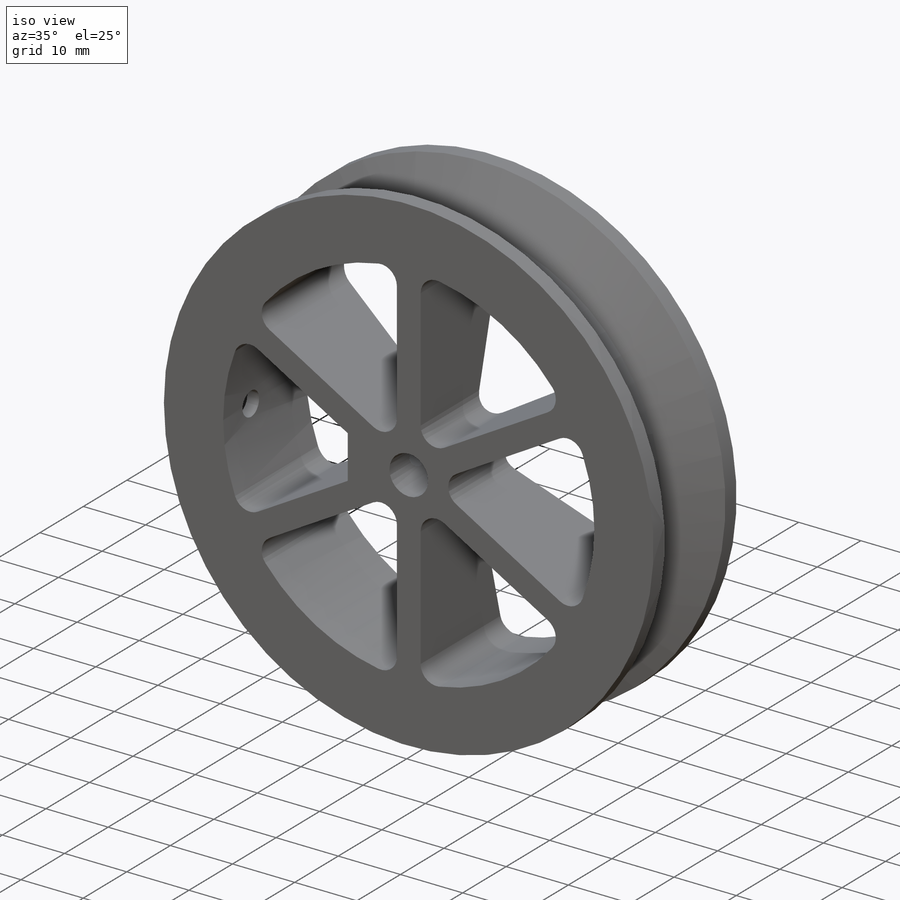
[diagram: iso view]
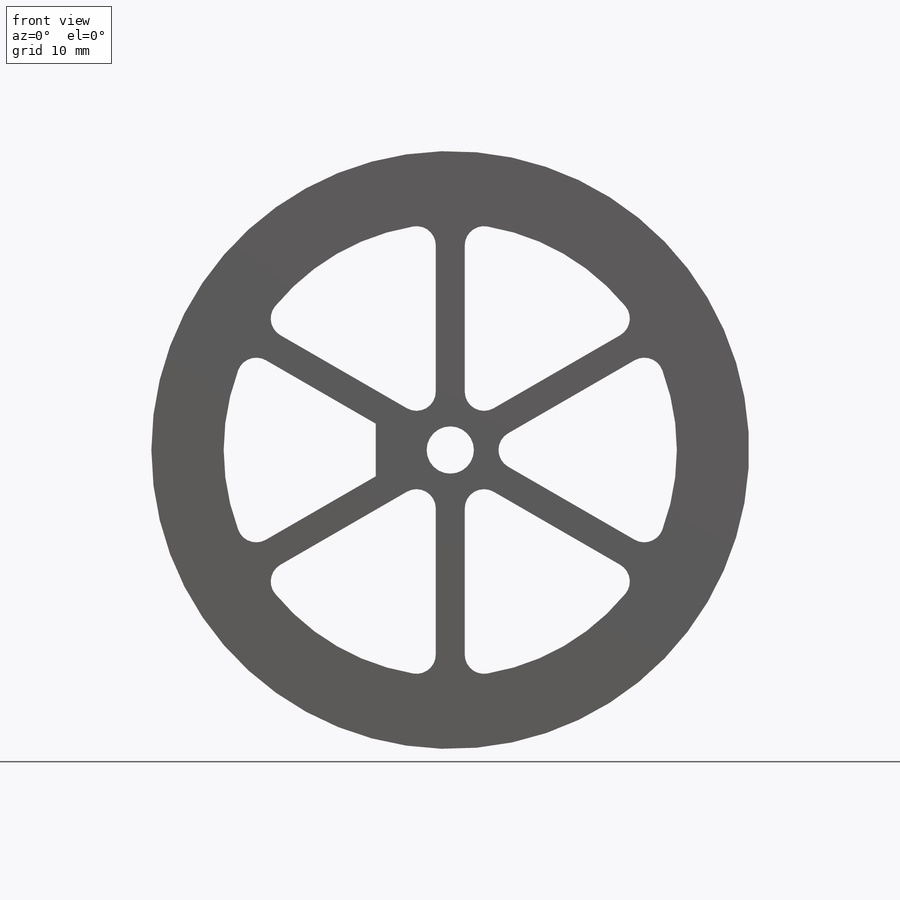
[diagram: front view]
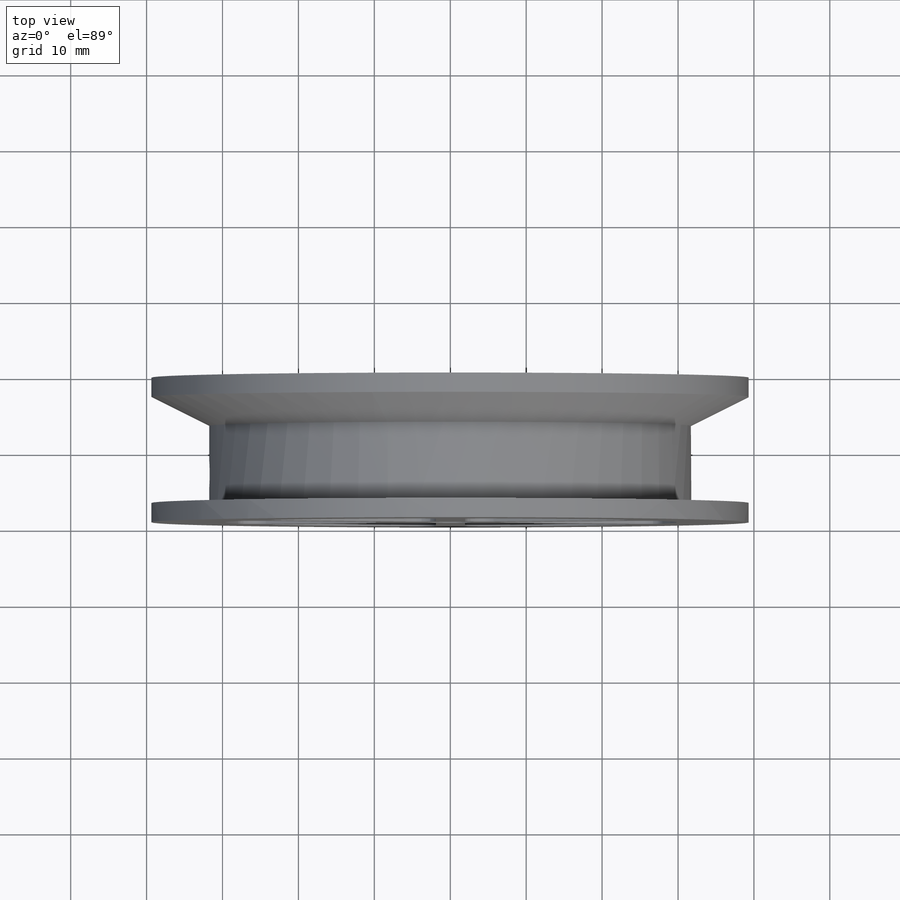
[diagram: top view]
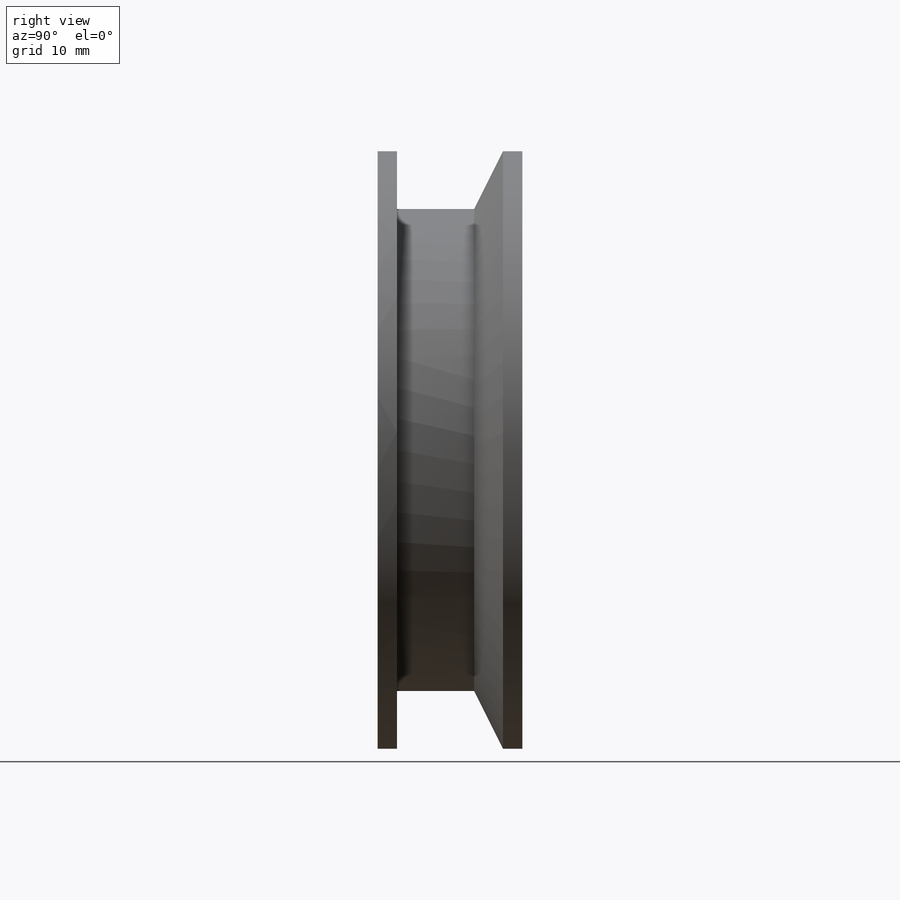
[diagram: right view]
SOLIDWORKS PART (.sldprt)
format: sldprt  version: not decoded by parser v0  size: 872,960 bytes
history: native  units: mm
features: sketch x11, cut_extrude x5, extrude x2, material x1, revolve x1, pattern_circular x1, hole x1, cut_revolve x1 (+13 scaffold rows collapsed)
feature tree (36):
  scaffold x13  (default folders/planes/origin — collapsed)
  material  "Material <not specified>"
  sketch  "Sketch2"  dims[c1.D1=19.05mm c1.D2=2.54mm c1.D3=2.54mm c1.D4=3.175mm c1.D5=31.75mm c2.D4=7.62mm c2.D6=2.54mm c2.D7=0.508mm c2.D5=31.75mm c3.D7=3.81mm c3.D6=13.7922mm c3.D8=4.3688mm c3.D1=19.05mm c3.D9=3.81mm]
  revolve  "Revolve1"  Angle=360deg
  sketch  "Sketch4"  dims[D1=6.223mm]
  cut_extrude  "Cut-Extrude1"  [1 undecoded]
  sketch  "Sketch5"  dims[c1.D1=57.15mm c1.D3=6.35mm c1.D5=2.54mm c2.D1=31.75mm c2.D2=28.575mm c3.D2=60.0deg c3.D4=2.54mm]
  cut_extrude  "Cut-Extrude2"  [1 undecoded]
  pattern_circular  "CirPattern1"  Count=6 Angle=60deg
  sketch  "Sketch6"  dims[D1=5.08mm D2=7.62mm]
  extrude  "Boss-Extrude2"  [1 undecoded]
  hole  "#4 Clearance Hole1"  Diameter=3.4544mm Depth=12.7mm
  sketch  "Sketch8"  dims[D1=3.81mm]
  sketch  "Sketch9"  dims[hole-wizard template sketch: 50 standard entries collapsed; hole parameters above]
  sketch  "Sketch10"  dims[D1=3.81mm]
  cut_extrude  "Cut-Extrude3"  [1 undecoded]
  sketch  "Sketch15"  dims[D1=6.35mm D2=0.254mm]
  cut_extrude  "Cut-Extrude7"  Depth=2.413mm
  sketch  "Sketch13"  dims[D1=2.0mm]
  cut_extrude  "Cut-Extrude6"  Depth=25.4mm
  sketch  "Sketch16"  dims[D1=7.62mm]
  cut_revolve  "Cut-Revolve1"  Angle=360deg
  sketch  "Sketch14"  dims[D1=10.16mm D2=4.0]
  extrude  "Print Tabs"  Depth=0.4mm
decode coverage: 18 of 22 modeling features carry decoded parameters
note: ~ marks probable driven/reference dimensions
note: 4 parameter values undecoded
summary: no parameter record found for 4 features
note: suppression state not decoded; provenance and decode notes live in map.json
